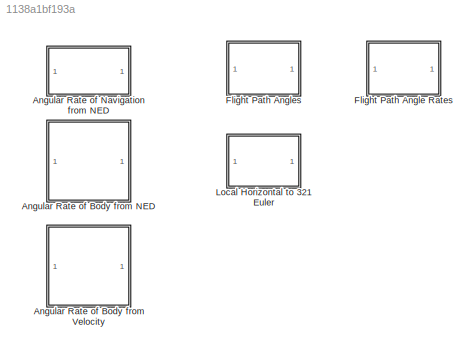
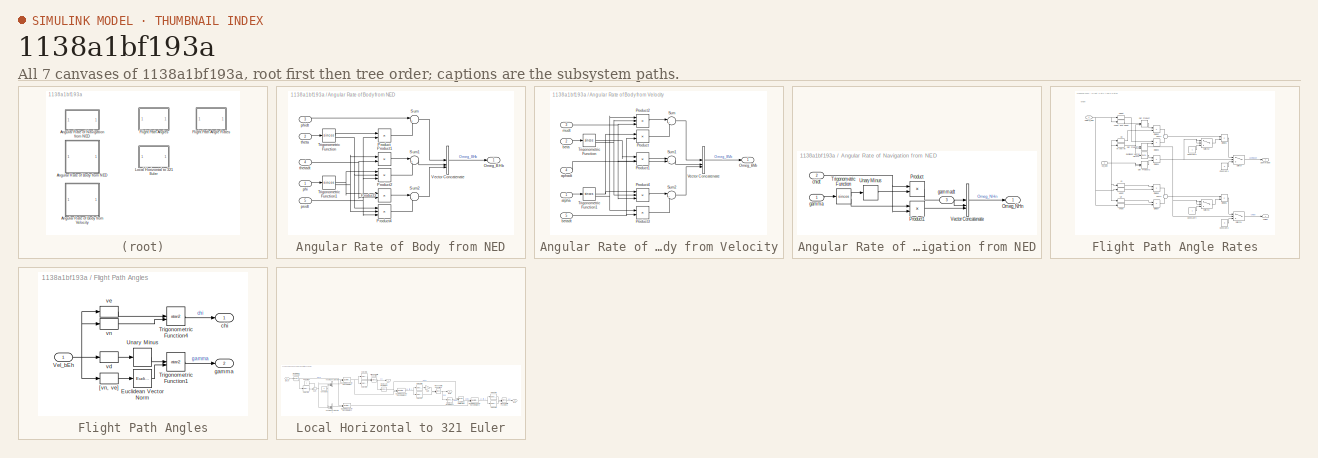
[diagram: thumbnail index - all 7 canvases of the model, root first then tree order]
MODEL slx_1138a1bf193a
KIND library
CONFIG AbsTol = auto
CONFIG EnableMultiTasking = on
CONFIG FixedStep = auto
CONFIG MaxStep = auto
CONFIG MinStep = auto
CONFIG RelTol = 1e-3
CONFIG SampleTimeConstraint = Unconstrained
CONFIG SolverName = ode45
CONFIG StartTime = 0.0
CONFIG StopTime = 10.0
BLOCK [SubSystem] Angular Rate of Body from NED
BLOCK [Outport] Angular Rate of Body from NED/Omeg_BHb
BLOCK [Product] Angular Rate of Body from NED/Product
  RndMeth = Zero
BLOCK [Product] Angular Rate of Body from NED/Product1
  RndMeth = Zero
BLOCK [Product] Angular Rate of Body from NED/Product2
  Inputs = 3
  RndMeth = Zero
BLOCK [Product] Angular Rate of Body from NED/Product3
  RndMeth = Zero
BLOCK [Product] Angular Rate of Body from NED/Product4
  Inputs = 3
  RndMeth = Zero
BLOCK [Sum] Angular Rate of Body from NED/Sum
  Inputs = |+-
BLOCK [Sum] Angular Rate of Body from NED/Sum1
  Inputs = |++
BLOCK [Sum] Angular Rate of Body from NED/Sum2
  Inputs = |-+
BLOCK [Trigonometry] Angular Rate of Body from NED/Trigonometric Function
  Operator = sincos
BLOCK [Trigonometry] Angular Rate of Body from NED/Trigonometric Function1
  Operator = sincos
BLOCK [Concatenate] Angular Rate of Body from NED/Vector Concatenate
  Mode = Multidimensional array
  NumInputs = 3
BLOCK [Inport] Angular Rate of Body from NED/phi
BLOCK [Inport] Angular Rate of Body from NED/phidt
  Port = 3
BLOCK [Inport] Angular Rate of Body from NED/psidt
  Port = 5
BLOCK [Inport] Angular Rate of Body from NED/theta
  Port = 2
BLOCK [Inport] Angular Rate of Body from NED/thetadt
  Port = 4
BLOCK [SubSystem] Angular Rate of Body from Velocity
BLOCK [Outport] Angular Rate of Body from Velocity/Omeg_BVb
BLOCK [Product] Angular Rate of Body from Velocity/Product
  RndMeth = Zero
BLOCK [Product] Angular Rate of Body from Velocity/Product1
  RndMeth = Zero
BLOCK [Product] Angular Rate of Body from Velocity/Product2
  Inputs = 3
  RndMeth = Zero
BLOCK [Product] Angular Rate of Body from Velocity/Product3
  RndMeth = Zero
BLOCK [Product] Angular Rate of Body from Velocity/Product4
  Inputs = 3
  RndMeth = Zero
BLOCK [Sum] Angular Rate of Body from Velocity/Sum
  Inputs = |++
BLOCK [Sum] Angular Rate of Body from Velocity/Sum1
  Inputs = |++
BLOCK [Sum] Angular Rate of Body from Velocity/Sum2
  Inputs = |+-
BLOCK [Trigonometry] Angular Rate of Body from Velocity/Trigonometric Function
  Operator = sincos
BLOCK [Trigonometry] Angular Rate of Body from Velocity/Trigonometric Function1
  Operator = sincos
BLOCK [Concatenate] Angular Rate of Body from Velocity/Vector Concatenate
  Mode = Multidimensional array
  NumInputs = 3
BLOCK [Inport] Angular Rate of Body from Velocity/alpha
BLOCK [Inport] Angular Rate of Body from Velocity/aphadt
  Port = 4
BLOCK [Inport] Angular Rate of Body from Velocity/beta
  Port = 2
BLOCK [Inport] Angular Rate of Body from Velocity/betadt
  Port = 5
BLOCK [Inport] Angular Rate of Body from Velocity/mudt
  Port = 3
BLOCK [SubSystem] Angular Rate of Navigation from NED
BLOCK [Outport] Angular Rate of Navigation from NED/Omeg_NHn
BLOCK [Product] Angular Rate of Navigation from NED/Product
  RndMeth = Zero
BLOCK [Product] Angular Rate of Navigation from NED/Product1
  RndMeth = Zero
BLOCK [Trigonometry] Angular Rate of Navigation from NED/Trigonometric Function
  Operator = sincos
BLOCK [UnaryMinus] Angular Rate of Navigation from NED/Unary Minus
BLOCK [Concatenate] Angular Rate of Navigation from NED/Vector Concatenate
  Mode = Multidimensional array
  NumInputs = 3
BLOCK [Inport] Angular Rate of Navigation from NED/chidt
  Port = 2
BLOCK [Inport] Angular Rate of Navigation from NED/gamma
BLOCK [Inport] Angular Rate of Navigation from NED/gammadt
  Port = 3
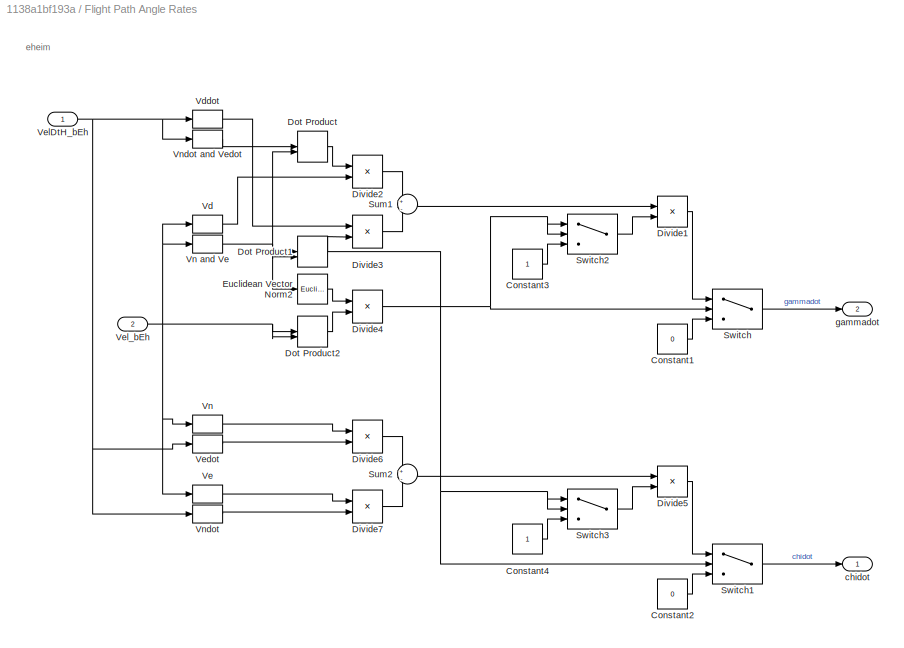
BLOCK [SubSystem] Flight Path Angle Rates
BLOCK [Constant] Flight Path Angle Rates/Constant1
  Value = 0
BLOCK [Constant] Flight Path Angle Rates/Constant2
  Value = 0
BLOCK [Constant] Flight Path Angle Rates/Constant3
BLOCK [Constant] Flight Path Angle Rates/Constant4
BLOCK [Product] Flight Path Angle Rates/Divide1
  Inputs = */
BLOCK [Product] Flight Path Angle Rates/Divide2
BLOCK [Product] Flight Path Angle Rates/Divide3
BLOCK [Product] Flight Path Angle Rates/Divide4
BLOCK [Product] Flight Path Angle Rates/Divide5
  Inputs = */
BLOCK [Product] Flight Path Angle Rates/Divide6
BLOCK [Product] Flight Path Angle Rates/Divide7
BLOCK [DotProduct] Flight Path Angle Rates/Dot Product
  OutDataTypeStr = Inherit: Inherit via internal rule
BLOCK [DotProduct] Flight Path Angle Rates/Dot Product1
  OutDataTypeStr = Inherit: Inherit via internal rule
BLOCK [DotProduct] Flight Path Angle Rates/Dot Product2
  OutDataTypeStr = Inherit: Inherit via internal rule
BLOCK [Reference] Flight Path Angle Rates/Euclidean Vector Norm2  REF=starslibMathOperations/Euclidean Vector Norm
  SourceBlock = starslibMathOperations/Euclidean Vector Norm
  SourceType = Euclidean Norm
BLOCK [Sum] Flight Path Angle Rates/Sum1
  Inputs = +|-
BLOCK [Sum] Flight Path Angle Rates/Sum2
  Inputs = +|-
BLOCK [Switch] Flight Path Angle Rates/Switch
  Criteria = u2 ~= 0
  InputSameDT = off
  SaturateOnIntegerOverflow = off
BLOCK [Switch] Flight Path Angle Rates/Switch1
  Criteria = u2 ~= 0
  InputSameDT = off
  SaturateOnIntegerOverflow = off
BLOCK [Switch] Flight Path Angle Rates/Switch2
  Criteria = u2 ~= 0
  InputSameDT = off
  SaturateOnIntegerOverflow = off
BLOCK [Switch] Flight Path Angle Rates/Switch3
  Criteria = u2 ~= 0
  InputSameDT = off
  SaturateOnIntegerOverflow = off
BLOCK [Selector] Flight Path Angle Rates/Vd
  IndexOptions = Index vector (dialog),Select all
  Indices = 3,1
  InputPortWidth = 3
  NameLocation = top
  NumberOfDimensions = 2
  OutputSizes = 1,1
BLOCK [Selector] Flight Path Angle Rates/Vddot
  IndexOptions = Index vector (dialog),Select all
  Indices = 3,1
  InputPortWidth = 3
  NameLocation = top
  NumberOfDimensions = 2
  OutputSizes = 1,1
BLOCK [Selector] Flight Path Angle Rates/Ve
  IndexOptions = Index vector (dialog),Select all
  Indices = 2,1
  InputPortWidth = 3
  NameLocation = top
  NumberOfDimensions = 2
  OutputSizes = 1,1
BLOCK [Selector] Flight Path Angle Rates/Vedot
  IndexOptions = Index vector (dialog),Select all
  Indices = 2,1
  InputPortWidth = 3
  NumberOfDimensions = 2
  OutputSizes = 1,1
BLOCK [Inport] Flight Path Angle Rates/VelDtH_bEh
BLOCK [Inport] Flight Path Angle Rates/Vel_bEh
  Port = 2
BLOCK [Selector] Flight Path Angle Rates/Vn
  IndexOptions = Index vector (dialog),Select all
  Indices = 1,1
  InputPortWidth = 3
  NameLocation = top
  NumberOfDimensions = 2
  OutputSizes = 1,1
BLOCK [Selector] Flight Path Angle Rates/Vn and Ve
  IndexOptions = Index vector (dialog),Select all
  Indices = [1 2],1
  InputPortWidth = 3
  NumberOfDimensions = 2
  OutputSizes = 1,1
BLOCK [Selector] Flight Path Angle Rates/Vndot
  IndexOptions = Index vector (dialog),Select all
  Indices = 1,1
  InputPortWidth = 3
  NumberOfDimensions = 2
  OutputSizes = 1,1
BLOCK [Selector] Flight Path Angle Rates/Vndot and Vedot
  IndexOptions = Index vector (dialog),Select all
  Indices = [1 2],1
  InputPortWidth = 3
  NumberOfDimensions = 2
  OutputSizes = 1,1
BLOCK [Outport] Flight Path Angle Rates/chidot
BLOCK [Outport] Flight Path Angle Rates/gammadot
  Port = 2
BLOCK [SubSystem] Flight Path Angles
BLOCK [Reference] Flight Path Angles/Euclidean Vector Norm  REF=starslibMathOperations/Euclidean Vector Norm
  SourceBlock = starslibMathOperations/Euclidean Vector Norm
  SourceType = Euclidean Norm
BLOCK [Trigonometry] Flight Path Angles/Trigonometric Function1
  Operator = atan2
  OutputSignalType = real
BLOCK [Trigonometry] Flight Path Angles/Trigonometric Function4
  Operator = atan2
  OutputSignalType = real
BLOCK [UnaryMinus] Flight Path Angles/Unary Minus
BLOCK [Inport] Flight Path Angles/Vel_bEh
BLOCK [Selector] Flight Path Angles/[vn, ve]
  IndexOptions = Index vector (dialog),Select all
  Indices = [1 2],1
  InputPortWidth = 3
  NumberOfDimensions = 2
  OutputSizes = 1,1
BLOCK [Outport] Flight Path Angles/chi
BLOCK [Outport] Flight Path Angles/gamma
  Port = 2
BLOCK [Selector] Flight Path Angles/vd
  IndexOptions = Index vector (dialog),Select all
  Indices = 3,1
  InputPortWidth = 3
  NameLocation = top
  NumberOfDimensions = 2
  OutputSizes = 1,1
BLOCK [Selector] Flight Path Angles/ve
  IndexOptions = Index vector (dialog),Select all
  Indices = 2,1
  InputPortWidth = 3
  NameLocation = top
  NumberOfDimensions = 2
  OutputSizes = 1,1
BLOCK [Selector] Flight Path Angles/vn
  IndexOptions = Index vector (dialog),Select all
  Indices = 1,1
  InputPortWidth = 3
  NumberOfDimensions = 2
  OutputSizes = 1,1
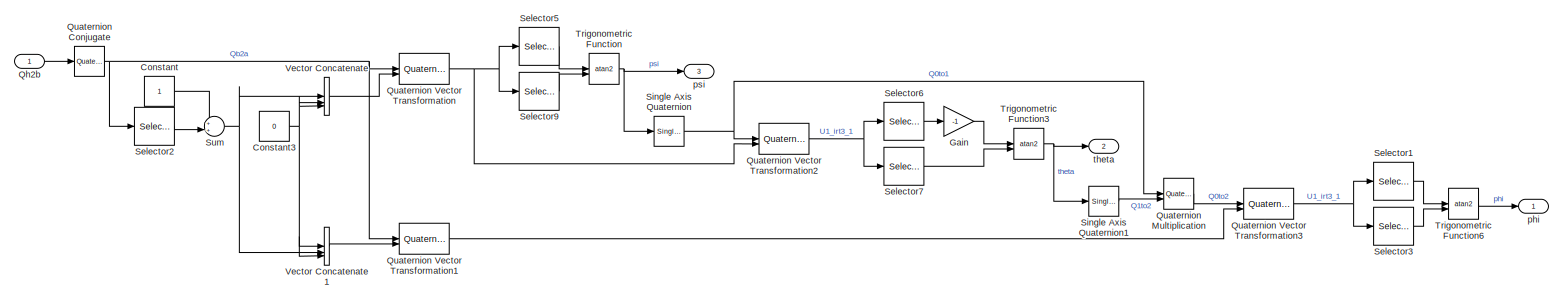
[diagram: Local Horizontal to 321 Euler - part 1/1, most of the canvas]
BLOCK [SubSystem] Local Horizontal to 321 Euler
BLOCK [Constant] Local Horizontal to 321 Euler/Constant
BLOCK [Constant] Local Horizontal to 321 Euler/Constant3
  Value = 0
BLOCK [Gain] Local Horizontal to 321 Euler/Gain
  Gain = -1
BLOCK [Inport] Local Horizontal to 321 Euler/Qh2b
BLOCK [Reference] Local Horizontal to 321 Euler/Quaternion Conjugate  REF=starslibMathOperations/Quaternion Conjugate
  SourceBlock = starslibMathOperations/Quaternion Conjugate
  SourceType = Quaternion Conjugate (1-D)
BLOCK [Reference] Local Horizontal to 321 Euler/Quaternion Multiplication  REF=starslibMathOperations/Quaternion Multiplication
  SourceBlock = starslibMathOperations/Quaternion Multiplication
  SourceType = Quaternion Multiplication (1-D)
BLOCK [Reference] Local Horizontal to 321 Euler/Quaternion Vector Transformation  REF=starslibAxisTransformations/Quaternion Vector Transformation
  SourceBlock = starslibAxisTransformations/Quaternion Vector Transformation
  SourceType = Quaterion Transformation of Vector (1-D)
BLOCK [Reference] Local Horizontal to 321 Euler/Quaternion Vector Transformation1  REF=starslibAxisTransformations/Quaternion Vector Transformation
  SourceBlock = starslibAxisTransformations/Quaternion Vector Transformation
  SourceType = Quaterion Transformation of Vector (1-D)
BLOCK [Reference] Local Horizontal to 321 Euler/Quaternion Vector Transformation2  REF=starslibAxisTransformations/Quaternion Vector Transformation
  SourceBlock = starslibAxisTransformations/Quaternion Vector Transformation
  SourceType = Quaterion Transformation of Vector (1-D)
BLOCK [Reference] Local Horizontal to 321 Euler/Quaternion Vector Transformation3  REF=starslibAxisTransformations/Quaternion Vector Transformation
  SourceBlock = starslibAxisTransformations/Quaternion Vector Transformation
  SourceType = Quaterion Transformation of Vector (1-D)
BLOCK [Selector] Local Horizontal to 321 Euler/Selector1
  IndexOptions = Index vector (dialog)
  Indices = 3
  InputPortWidth = 3
  OutputSizes = 1
BLOCK [Selector] Local Horizontal to 321 Euler/Selector2
  IndexOptions = Index vector (dialog)
  Indices = 1
  InputPortWidth = 4
  OutputSizes = 1
BLOCK [Selector] Local Horizontal to 321 Euler/Selector3
  IndexOptions = Index vector (dialog)
  Indices = 2
  InputPortWidth = 3
  OutputSizes = 1
BLOCK [Selector] Local Horizontal to 321 Euler/Selector5
  IndexOptions = Index vector (dialog)
  Indices = 2
  InputPortWidth = 3
  OutputSizes = 1
BLOCK [Selector] Local Horizontal to 321 Euler/Selector6
  IndexOptions = Index vector (dialog)
  Indices = 3
  InputPortWidth = 3
  OutputSizes = 1
BLOCK [Selector] Local Horizontal to 321 Euler/Selector7
  IndexOptions = Index vector (dialog)
  Indices = 1
  InputPortWidth = 3
  OutputSizes = 1
BLOCK [Selector] Local Horizontal to 321 Euler/Selector9
  IndexOptions = Index vector (dialog)
  Indices = 1
  InputPortWidth = 3
  OutputSizes = 1
BLOCK [Reference] Local Horizontal to 321 Euler/Single Axis Quaternion  REF=starslibAxisTransformations/Single Axis Quaternion
  SourceBlock = starslibAxisTransformations/Single Axis Quaternion
  SourceType = Quaternion Single Axis Rotation (1-D)
BLOCK [Reference] Local Horizontal to 321 Euler/Single Axis Quaternion1  REF=starslibAxisTransformations/Single Axis Quaternion
  SourceBlock = starslibAxisTransformations/Single Axis Quaternion
  SourceType = Quaternion Single Axis Rotation (1-D)
BLOCK [Sum] Local Horizontal to 321 Euler/Sum
  Inputs = ++|
BLOCK [Trigonometry] Local Horizontal to 321 Euler/Trigonometric Function
  Operator = atan2
BLOCK [Trigonometry] Local Horizontal to 321 Euler/Trigonometric Function3
  Operator = atan2
BLOCK [Trigonometry] Local Horizontal to 321 Euler/Trigonometric Function6
  Operator = atan2
BLOCK [Concatenate] Local Horizontal to 321 Euler/Vector Concatenate
  Mode = Multidimensional array
  NumInputs = 3
BLOCK [Concatenate] Local Horizontal to 321 Euler/Vector Concatenate1
  Mode = Multidimensional array
  NumInputs = 3
BLOCK [Outport] Local Horizontal to 321 Euler/phi
BLOCK [Outport] Local Horizontal to 321 Euler/psi
  Port = 3
BLOCK [Outport] Local Horizontal to 321 Euler/theta
  Port = 2
ANNOTATION Flight Path Angle Rates: eheim
LINE Angular Rate of Body from NED/Product1:1 -> Angular Rate of Body from NED/Sum1:1
LINE Angular Rate of Body from NED/Product2:1 -> Angular Rate of Body from NED/Sum1:2
LINE Angular Rate of Body from NED/Product3:1 -> Angular Rate of Body from NED/Sum2:1
LINE Angular Rate of Body from NED/Product4:1 -> Angular Rate of Body from NED/Sum2:2
LINE Angular Rate of Body from NED/Product:1 -> Angular Rate of Body from NED/Sum:2
LINE Angular Rate of Body from NED/Sum1:1 -> Angular Rate of Body from NED/Vector Concatenate:2
LINE Angular Rate of Body from NED/Sum2:1 -> Angular Rate of Body from NED/Vector Concatenate:3
LINE Angular Rate of Body from NED/Sum:1 -> Angular Rate of Body from NED/Vector Concatenate:1
NET Angular Rate of Body from NED/Trigonometric Function1:1 -> Angular Rate of Body from NED/Product2:1, Angular Rate of Body from NED/Product3:1
NET Angular Rate of Body from NED/Trigonometric Function1:2 -> Angular Rate of Body from NED/Product1:1, Angular Rate of Body from NED/Product4:2
LINE Angular Rate of Body from NED/Trigonometric Function:1 -> Angular Rate of Body from NED/Product:1
NET Angular Rate of Body from NED/Trigonometric Function:2 -> Angular Rate of Body from NED/Product2:2, Angular Rate of Body from NED/Product4:1
LINE Angular Rate of Body from NED/Vector Concatenate:1 -> Angular Rate of Body from NED/Omeg_BHb:1
LINE Angular Rate of Body from NED/phi:1 -> Angular Rate of Body from NED/Trigonometric Function1:1
LINE Angular Rate of Body from NED/phidt:1 -> Angular Rate of Body from NED/Sum:1
NET Angular Rate of Body from NED/psidt:1 -> Angular Rate of Body from NED/Product2:3, Angular Rate of Body from NED/Product4:3, Angular Rate of Body from NED/Product:2
LINE Angular Rate of Body from NED/theta:1 -> Angular Rate of Body from NED/Trigonometric Function:1
NET Angular Rate of Body from NED/thetadt:1 -> Angular Rate of Body from NED/Product1:2, Angular Rate of Body from NED/Product3:2
LINE Angular Rate of Body from Velocity/Product1:1 -> Angular Rate of Body from Velocity/Sum1:1
LINE Angular Rate of Body from Velocity/Product2:1 -> Angular Rate of Body from Velocity/Sum:1
LINE Angular Rate of Body from Velocity/Product3:1 -> Angular Rate of Body from Velocity/Sum2:2
LINE Angular Rate of Body from Velocity/Product4:1 -> Angular Rate of Body from Velocity/Sum2:1
LINE Angular Rate of Body from Velocity/Product:1 -> Angular Rate of Body from Velocity/Sum:2
LINE Angular Rate of Body from Velocity/Sum1:1 -> Angular Rate of Body from Velocity/Vector Concatenate:2
LINE Angular Rate of Body from Velocity/Sum2:1 -> Angular Rate of Body from Velocity/Vector Concatenate:3
LINE Angular Rate of Body from Velocity/Sum:1 -> Angular Rate of Body from Velocity/Vector Concatenate:1
NET Angular Rate of Body from Velocity/Trigonometric Function1:1 -> Angular Rate of Body from Velocity/Product4:1, Angular Rate of Body from Velocity/Product:1
NET Angular Rate of Body from Velocity/Trigonometric Function1:2 -> Angular Rate of Body from Velocity/Product2:1, Angular Rate of Body from Velocity/Product3:1
LINE Angular Rate of Body from Velocity/Trigonometric Function:1 -> Angular Rate of Body from Velocity/Product1:1
NET Angular Rate of Body from Velocity/Trigonometric Function:2 -> Angular Rate of Body from Velocity/Product2:2, Angular Rate of Body from Velocity/Product4:2
LINE Angular Rate of Body from Velocity/Vector Concatenate:1 -> Angular Rate of Body from Velocity/Omeg_BVb:1
LINE Angular Rate of Body from Velocity/alpha:1 -> Angular Rate of Body from Velocity/Trigonometric Function1:1
LINE Angular Rate of Body from Velocity/aphadt:1 -> Angular Rate of Body from Velocity/Sum1:2
LINE Angular Rate of Body from Velocity/beta:1 -> Angular Rate of Body from Velocity/Trigonometric Function:1
NET Angular Rate of Body from Velocity/betadt:1 -> Angular Rate of Body from Velocity/Product3:2, Angular Rate of Body from Velocity/Product:2
NET Angular Rate of Body from Velocity/mudt:1 -> Angular Rate of Body from Velocity/Product1:2, Angular Rate of Body from Velocity/Product2:3, Angular Rate of Body from Velocity/Product4:3
LINE Angular Rate of Navigation from NED/Product1:1 -> Angular Rate of Navigation from NED/Vector Concatenate:3
LINE Angular Rate of Navigation from NED/Product:1 -> Angular Rate of Navigation from NED/Vector Concatenate:1
LINE Angular Rate of Navigation from NED/Trigonometric Function:1 -> Angular Rate of Navigation from NED/Unary Minus:1
LINE Angular Rate of Navigation from NED/Trigonometric Function:2 -> Angular Rate of Navigation from NED/Product1:1
LINE Angular Rate of Navigation from NED/Unary Minus:1 -> Angular Rate of Navigation from NED/Product:2
LINE Angular Rate of Navigation from NED/Vector Concatenate:1 -> Angular Rate of Navigation from NED/Omeg_NHn:1
NET Angular Rate of Navigation from NED/chidt:1 -> Angular Rate of Navigation from NED/Product1:2, Angular Rate of Navigation from NED/Product:1
LINE Angular Rate of Navigation from NED/gamma:1 -> Angular Rate of Navigation from NED/Trigonometric Function:1
LINE Angular Rate of Navigation from NED/gammadt:1 -> Angular Rate of Navigation from NED/Vector Concatenate:2
LINE Flight Path Angle Rates/Constant1:1 -> Flight Path Angle Rates/Switch:3
LINE Flight Path Angle Rates/Constant2:1 -> Flight Path Angle Rates/Switch1:3
LINE Flight Path Angle Rates/Constant3:1 -> Flight Path Angle Rates/Switch2:3
LINE Flight Path Angle Rates/Constant4:1 -> Flight Path Angle Rates/Switch3:3
LINE Flight Path Angle Rates/Divide1:1 -> Flight Path Angle Rates/Switch:1
LINE Flight Path Angle Rates/Divide2:1 -> Flight Path Angle Rates/Sum1:1
LINE Flight Path Angle Rates/Divide3:1 -> Flight Path Angle Rates/Sum1:2
NET Flight Path Angle Rates/Divide4:1 -> Flight Path Angle Rates/Switch2:1, Flight Path Angle Rates/Switch2:2, Flight Path Angle Rates/Switch:2
LINE Flight Path Angle Rates/Divide5:1 -> Flight Path Angle Rates/Switch1:1
LINE Flight Path Angle Rates/Divide6:1 -> Flight Path Angle Rates/Sum2:1
LINE Flight Path Angle Rates/Divide7:1 -> Flight Path Angle Rates/Sum2:2
NET Flight Path Angle Rates/Dot Product1:1 -> Flight Path Angle Rates/Divide3:2, Flight Path Angle Rates/Switch1:2, Flight Path Angle Rates/Switch3:1, Flight Path Angle Rates/Switch3:2
LINE Flight Path Angle Rates/Dot Product2:1 -> Flight Path Angle Rates/Divide4:2
LINE Flight Path Angle Rates/Dot Product:1 -> Flight Path Angle Rates/Divide2:1
LINE Flight Path Angle Rates/Euclidean Vector Norm2:1 -> Flight Path Angle Rates/Divide4:1
LINE Flight Path Angle Rates/Sum1:1 -> Flight Path Angle Rates/Divide1:1
LINE Flight Path Angle Rates/Sum2:1 -> Flight Path Angle Rates/Divide5:1
LINE Flight Path Angle Rates/Switch1:1 -> Flight Path Angle Rates/chidot:1
LINE Flight Path Angle Rates/Switch2:1 -> Flight Path Angle Rates/Divide1:2
LINE Flight Path Angle Rates/Switch3:1 -> Flight Path Angle Rates/Divide5:2
LINE Flight Path Angle Rates/Switch:1 -> Flight Path Angle Rates/gammadot:1
LINE Flight Path Angle Rates/Vd:1 -> Flight Path Angle Rates/Divide2:2
LINE Flight Path Angle Rates/Vddot:1 -> Flight Path Angle Rates/Divide3:1
LINE Flight Path Angle Rates/Ve:1 -> Flight Path Angle Rates/Divide7:1
LINE Flight Path Angle Rates/Vedot:1 -> Flight Path Angle Rates/Divide6:2
NET Flight Path Angle Rates/VelDtH_bEh:1 -> Flight Path Angle Rates/Vddot:1, Flight Path Angle Rates/Vedot:1, Flight Path Angle Rates/Vndot and Vedot:1, Flight Path Angle Rates/Vndot:1
NET Flight Path Angle Rates/Vel_bEh:1 -> Flight Path Angle Rates/Dot Product2:1, Flight Path Angle Rates/Dot Product2:2, Flight Path Angle Rates/Vd:1, Flight Path Angle Rates/Ve:1, Flight Path Angle Rates/Vn and Ve:1, Flight Path Angle Rates/Vn:1
NET Flight Path Angle Rates/Vn and Ve:1 -> Flight Path Angle Rates/Dot Product1:1, Flight Path Angle Rates/Dot Product1:2, Flight Path Angle Rates/Dot Product:2, Flight Path Angle Rates/Euclidean Vector Norm2:1
LINE Flight Path Angle Rates/Vn:1 -> Flight Path Angle Rates/Divide6:1
LINE Flight Path Angle Rates/Vndot and Vedot:1 -> Flight Path Angle Rates/Dot Product:1
LINE Flight Path Angle Rates/Vndot:1 -> Flight Path Angle Rates/Divide7:2
LINE Flight Path Angles/Euclidean Vector Norm:1 -> Flight Path Angles/Trigonometric Function1:2
LINE Flight Path Angles/Trigonometric Function1:1 -> Flight Path Angles/gamma:1
LINE Flight Path Angles/Trigonometric Function4:1 -> Flight Path Angles/chi:1
LINE Flight Path Angles/Unary Minus:1 -> Flight Path Angles/Trigonometric Function1:1
NET Flight Path Angles/Vel_bEh:1 -> Flight Path Angles/[vn, ve]:1, Flight Path Angles/vd:1, Flight Path Angles/ve:1, Flight Path Angles/vn:1
LINE Flight Path Angles/[vn, ve]:1 -> Flight Path Angles/Euclidean Vector Norm:1
LINE Flight Path Angles/vd:1 -> Flight Path Angles/Unary Minus:1
LINE Flight Path Angles/ve:1 -> Flight Path Angles/Trigonometric Function4:1
LINE Flight Path Angles/vn:1 -> Flight Path Angles/Trigonometric Function4:2
NET Local Horizontal to 321 Euler/Constant3:1 -> Local Horizontal to 321 Euler/Vector Concatenate1:1, Local Horizontal to 321 Euler/Vector Concatenate1:3, Local Horizontal to 321 Euler/Vector Concatenate:2, Local Horizontal to 321 Euler/Vector Concatenate:3
LINE Local Horizontal to 321 Euler/Constant:1 -> Local Horizontal to 321 Euler/Sum:1
LINE Local Horizontal to 321 Euler/Gain:1 -> Local Horizontal to 321 Euler/Trigonometric Function3:1
LINE Local Horizontal to 321 Euler/Qh2b:1 -> Local Horizontal to 321 Euler/Quaternion Conjugate:1
NET Local Horizontal to 321 Euler/Quaternion Conjugate:1 -> Local Horizontal to 321 Euler/Quaternion Vector Transformation1:1, Local Horizontal to 321 Euler/Quaternion Vector Transformation:1, Local Horizontal to 321 Euler/Selector2:1
LINE Local Horizontal to 321 Euler/Quaternion Multiplication:1 -> Local Horizontal to 321 Euler/Quaternion Vector Transformation3:1
LINE Local Horizontal to 321 Euler/Quaternion Vector Transformation1:1 -> Local Horizontal to 321 Euler/Quaternion Vector Transformation3:2
NET Local Horizontal to 321 Euler/Quaternion Vector Transformation2:1 -> Local Horizontal to 321 Euler/Selector6:1, Local Horizontal to 321 Euler/Selector7:1
NET Local Horizontal to 321 Euler/Quaternion Vector Transformation3:1 -> Local Horizontal to 321 Euler/Selector1:1, Local Horizontal to 321 Euler/Selector3:1
NET Local Horizontal to 321 Euler/Quaternion Vector Transformation:1 -> Local Horizontal to 321 Euler/Quaternion Vector Transformation2:2, Local Horizontal to 321 Euler/Selector5:1, Local Horizontal to 321 Euler/Selector9:1
LINE Local Horizontal to 321 Euler/Selector1:1 -> Local Horizontal to 321 Euler/Trigonometric Function6:1
LINE Local Horizontal to 321 Euler/Selector2:1 -> Local Horizontal to 321 Euler/Sum:2
LINE Local Horizontal to 321 Euler/Selector3:1 -> Local Horizontal to 321 Euler/Trigonometric Function6:2
LINE Local Horizontal to 321 Euler/Selector5:1 -> Local Horizontal to 321 Euler/Trigonometric Function:1
LINE Local Horizontal to 321 Euler/Selector6:1 -> Local Horizontal to 321 Euler/Gain:1
LINE Local Horizontal to 321 Euler/Selector7:1 -> Local Horizontal to 321 Euler/Trigonometric Function3:2
LINE Local Horizontal to 321 Euler/Selector9:1 -> Local Horizontal to 321 Euler/Trigonometric Function:2
LINE Local Horizontal to 321 Euler/Single Axis Quaternion1:1 -> Local Horizontal to 321 Euler/Quaternion Multiplication:2
NET Local Horizontal to 321 Euler/Single Axis Quaternion:1 -> Local Horizontal to 321 Euler/Quaternion Multiplication:1, Local Horizontal to 321 Euler/Quaternion Vector Transformation2:1
NET Local Horizontal to 321 Euler/Sum:1 -> Local Horizontal to 321 Euler/Vector Concatenate1:2, Local Horizontal to 321 Euler/Vector Concatenate:1
NET Local Horizontal to 321 Euler/Trigonometric Function3:1 -> Local Horizontal to 321 Euler/Single Axis Quaternion1:1, Local Horizontal to 321 Euler/theta:1
LINE Local Horizontal to 321 Euler/Trigonometric Function6:1 -> Local Horizontal to 321 Euler/phi:1
NET Local Horizontal to 321 Euler/Trigonometric Function:1 -> Local Horizontal to 321 Euler/Single Axis Quaternion:1, Local Horizontal to 321 Euler/psi:1
LINE Local Horizontal to 321 Euler/Vector Concatenate1:1 -> Local Horizontal to 321 Euler/Quaternion Vector Transformation1:2
LINE Local Horizontal to 321 Euler/Vector Concatenate:1 -> Local Horizontal to 321 Euler/Quaternion Vector Transformation:2
note: NET lines group one-source signal fan-out (src -> all destinations, sorted); 1:1 wires keep LINE
